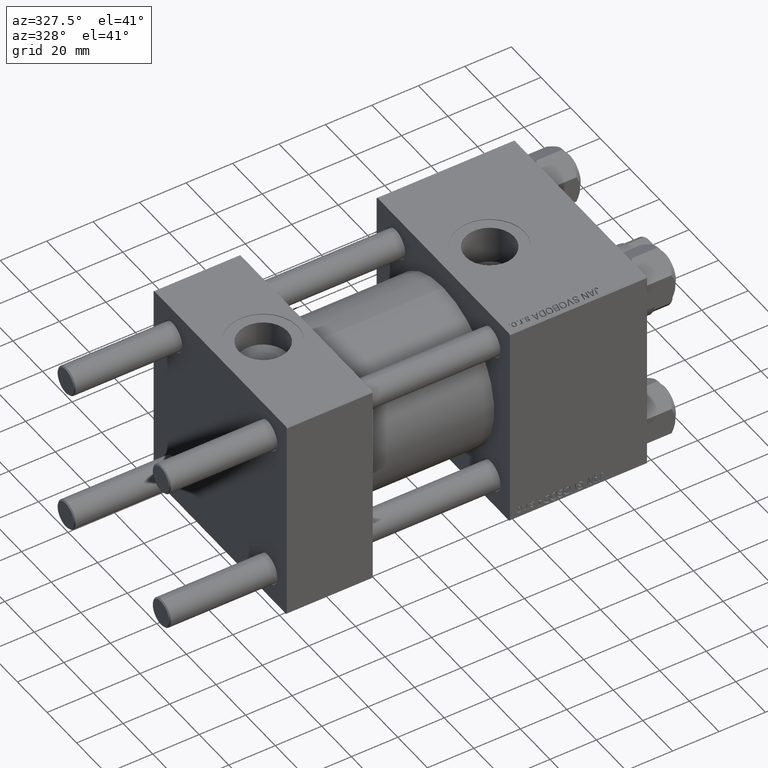
[diagram: clean part render]
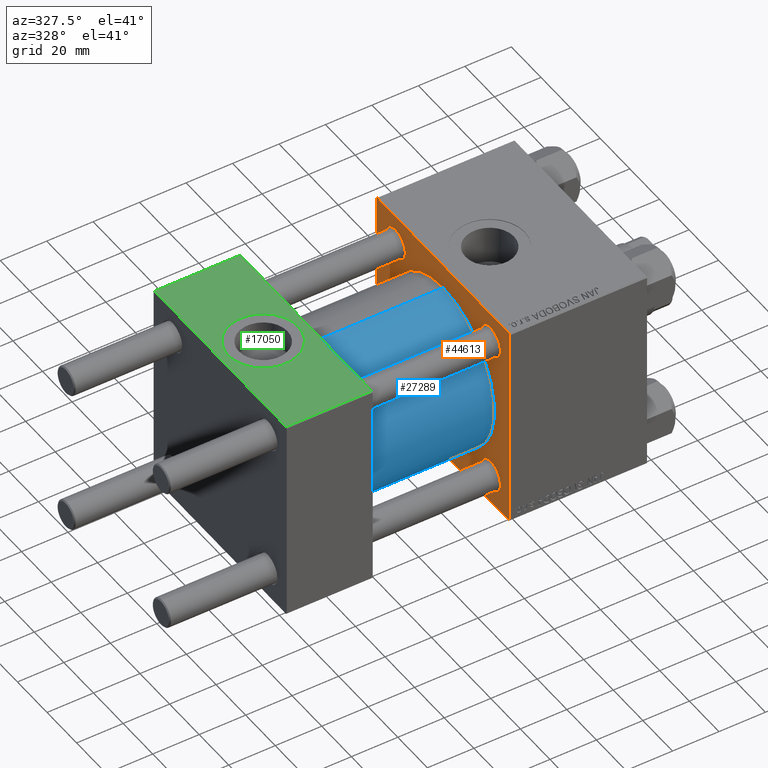
[diagram: same view with three faces highlighted in distinct colors, each labeled with its STEP entity id]
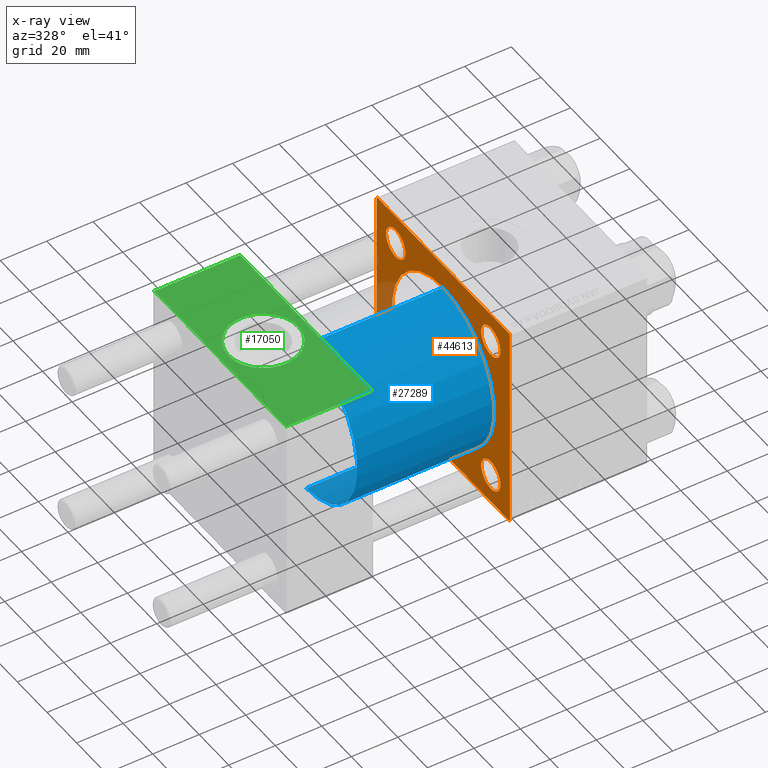
[diagram: x-ray of the same camera — body ghosted, the three highlighted faces saturated]
A machine part, auxiliary view with three faces highlighted in distinct colors.
The next image is the same camera in x-ray (body ghosted, the three faces saturated) — at least one of them is partly hidden behind the body in this view.
Their STEP definitions:

[orange] entity #44613 — the highlighted planar face has unit normal (-1, 0, 0).
#154 = CARTESIAN_POINT ( 'NONE',  ( 96.00000000000000000, 45.00000000000001421, -45.00000000000000000 ) ) ;
#954 = DIRECTION ( 'NONE',  ( 0.000000000000000000, 0.000000000000000000, 1.000000000000000000 ) ) ;
#1157 = ORIENTED_EDGE ( 'NONE', *, *, #49781, .T. ) ;
#1288 = CIRCLE ( 'NONE', #39050, 6.500000000000033751 ) ;
#1679 = ORIENTED_EDGE ( 'NONE', *, *, #38675, .F. ) ;
#2377 = CARTESIAN_POINT ( 'NONE',  ( 96.00000000000000000, -32.14999999999997726, 25.64999999999997726 ) ) ;
#2561 = EDGE_CURVE ( 'NONE', #17010, #9941, #34872, .T. ) ;
#2977 = EDGE_LOOP ( 'NONE', ( #9493, #13410 ) ) ;
#3344 = CARTESIAN_POINT ( 'NONE',  ( 96.00000000000000000, -32.14999999999997726, -25.64999999999997726 ) ) ;
#4055 = DIRECTION ( 'NONE',  ( 0.000000000000000000, 0.000000000000000000, 1.000000000000000000 ) ) ;
#4341 = VECTOR ( 'NONE', #20413, 1000.000000000000114 ) ;
#4376 = LINE ( 'NONE', #27778, #10995 ) ;
#4742 = CARTESIAN_POINT ( 'NONE',  ( 96.00000000000000000, -44.49999999999994316, 44.99999999999998579 ) ) ;
#4885 = CARTESIAN_POINT ( 'NONE',  ( 96.00000000000000000, 45.00000000000001421, -44.49999999999997158 ) ) ;
#4897 = EDGE_CURVE ( 'NONE', #37894, #37376, #26257, .T. ) ;
#5076 = CARTESIAN_POINT ( 'NONE',  ( 96.00000000000000000, 44.74999999999998579, 44.74999999999998579 ) ) ;
#5161 = ORIENTED_EDGE ( 'NONE', *, *, #26108, .T. ) ;
#5925 = CIRCLE ( 'NONE', #25207, 6.500000000000033751 ) ;
#7678 = VECTOR ( 'NONE', #22790, 1000.000000000000000 ) ;
#7735 = FACE_BOUND ( 'NONE', #35952, .T. ) ;
#7973 = EDGE_CURVE ( 'NONE', #12268, #12202, #11839, .T. ) ;
#7998 = CARTESIAN_POINT ( 'NONE',  ( 96.00000000000000000, -45.00000000000000000, 44.49999999999995737 ) ) ;
#8230 = CARTESIAN_POINT ( 'NONE',  ( 96.00000000000000000, -44.74999999999997158, 44.74999999999997158 ) ) ;
#8494 = DIRECTION ( 'NONE',  ( 1.000000000000000000, 0.000000000000000000, 0.000000000000000000 ) ) ;
#9048 = CARTESIAN_POINT ( 'NONE',  ( 96.00000000000000000, 4.225031457058367344E-15, -34.49999999999999289 ) ) ;
#9147 = ORIENTED_EDGE ( 'NONE', *, *, #40756, .T. ) ;
#9171 = EDGE_CURVE ( 'NONE', #12202, #12268, #38473, .T. ) ;
#9333 = CIRCLE ( 'NONE', #35846, 6.500000000000033751 ) ;
#9493 = ORIENTED_EDGE ( 'NONE', *, *, #4897, .T. ) ;
#9842 = EDGE_CURVE ( 'NONE', #20731, #38486, #14324, .T. ) ;
#9941 = VERTEX_POINT ( 'NONE', #15647 ) ;
#10456 = EDGE_LOOP ( 'NONE', ( #14981, #41584 ) ) ;
#10995 = VECTOR ( 'NONE', #16198, 1000.000000000000000 ) ;
#11386 = DIRECTION ( 'NONE',  ( 0.000000000000000000, 0.000000000000000000, 1.000000000000000000 ) ) ;
#11660 = EDGE_CURVE ( 'NONE', #37376, #37894, #28867, .T. ) ;
#11839 = CIRCLE ( 'NONE', #39996, 34.49999999999999289 ) ;
#11890 = EDGE_CURVE ( 'NONE', #38486, #20731, #24846, .T. ) ;
#12013 = EDGE_LOOP ( 'NONE', ( #16187, #18246 ) ) ;
#12202 = VERTEX_POINT ( 'NONE', #9048 ) ;
#12268 = VERTEX_POINT ( 'NONE', #36469 ) ;
#12314 = VERTEX_POINT ( 'NONE', #41995 ) ;
#12346 = DIRECTION ( 'NONE',  ( 0.000000000000000000, 0.000000000000000000, 1.000000000000000000 ) ) ;
#12412 = ORIENTED_EDGE ( 'NONE', *, *, #2561, .T. ) ;
#12419 = VERTEX_POINT ( 'NONE', #7998 ) ;
#12650 = CARTESIAN_POINT ( 'NONE',  ( 96.00000000000000000, 32.14999999999999147, -25.64999999999997016 ) ) ;
#13050 = CARTESIAN_POINT ( 'NONE',  ( 96.00000000000000000, 32.14999999999999147, 38.65000000000004121 ) ) ;
#13410 = ORIENTED_EDGE ( 'NONE', *, *, #11660, .T. ) ;
#13616 = AXIS2_PLACEMENT_3D ( 'NONE', #21044, #39450, #35669 ) ;
#13810 = VERTEX_POINT ( 'NONE', #37672 ) ;
#14299 = DIRECTION ( 'NONE',  ( -1.000000000000000000, 0.000000000000000000, -0.000000000000000000 ) ) ;
#14324 = CIRCLE ( 'NONE', #42477, 6.500000000000033751 ) ;
#14981 = ORIENTED_EDGE ( 'NONE', *, *, #35415, .T. ) ;
#15473 = DIRECTION ( 'NONE',  ( 1.000000000000000000, 0.000000000000000000, 0.000000000000000000 ) ) ;
#15647 = CARTESIAN_POINT ( 'NONE',  ( 96.00000000000000000, -44.49999999999990052, -45.00000000000000000 ) ) ;
#15720 = VERTEX_POINT ( 'NONE', #23105 ) ;
#16187 = ORIENTED_EDGE ( 'NONE', *, *, #26514, .T. ) ;
#16198 = DIRECTION ( 'NONE',  ( 0.000000000000000000, -1.000000000000000000, -1.541976423090495140E-16 ) ) ;
#16594 = AXIS2_PLACEMENT_3D ( 'NONE', #39583, #31784, #46895 ) ;
#16827 = LINE ( 'NONE', #44501, #47716 ) ;
#17010 = VERTEX_POINT ( 'NONE', #40158 ) ;
#17212 = CARTESIAN_POINT ( 'NONE',  ( 96.00000000000000000, 32.14999999999999147, -38.65000000000004121 ) ) ;
#17266 = ORIENTED_EDGE ( 'NONE', *, *, #36664, .T. ) ;
#18063 = FACE_BOUND ( 'NONE', #23896, .T. ) ;
#18246 = ORIENTED_EDGE ( 'NONE', *, *, #32876, .T. ) ;
#18511 = DIRECTION ( 'NONE',  ( 1.000000000000000000, 0.000000000000000000, 0.000000000000000000 ) ) ;
#18809 = PLANE ( 'NONE',  #37610 ) ;
#18895 = DIRECTION ( 'NONE',  ( 0.000000000000000000, 0.000000000000000000, -1.000000000000000000 ) ) ;
#19045 = ORIENTED_EDGE ( 'NONE', *, *, #37681, .F. ) ;
#19370 = VERTEX_POINT ( 'NONE', #17212 ) ;
#19726 = CARTESIAN_POINT ( 'NONE',  ( 96.00000000000000000, 32.14999999999999147, 25.64999999999997016 ) ) ;
#19948 = VECTOR ( 'NONE', #35911, 1000.000000000000114 ) ;
#20303 = LINE ( 'NONE', #8230, #19948 ) ;
#20321 = VERTEX_POINT ( 'NONE', #12650 ) ;
#20413 = DIRECTION ( 'NONE',  ( 0.000000000000000000, 0.7071067811865474617, -0.7071067811865474617 ) ) ;
#20731 = VERTEX_POINT ( 'NONE', #36478 ) ;
#21044 = CARTESIAN_POINT ( 'NONE',  ( 96.00000000000000000, 32.14999999999999147, 32.15000000000000568 ) ) ;
#22282 = CARTESIAN_POINT ( 'NONE',  ( 96.00000000000000000, 0.000000000000000000, 0.000000000000000000 ) ) ;
#22599 = CARTESIAN_POINT ( 'NONE',  ( 96.00000000000000000, 32.14999999999999147, -32.15000000000000568 ) ) ;
#22790 = DIRECTION ( 'NONE',  ( 0.000000000000000000, -1.000000000000000000, 0.000000000000000000 ) ) ;
#23105 = CARTESIAN_POINT ( 'NONE',  ( 96.00000000000000000, -44.99999999999999289, -44.49999999999991473 ) ) ;
#23417 = DIRECTION ( 'NONE',  ( 1.000000000000000000, 0.000000000000000000, 0.000000000000000000 ) ) ;
#23695 = AXIS2_PLACEMENT_3D ( 'NONE', #27626, #8494, #954 ) ;
#23896 = EDGE_LOOP ( 'NONE', ( #45573, #24911 ) ) ;
#24184 = CARTESIAN_POINT ( 'NONE',  ( 96.00000000000000000, -45.00000000000000000, 44.99999999999998579 ) ) ;
#24846 = CIRCLE ( 'NONE', #48165, 6.500000000000033751 ) ;
#24911 = ORIENTED_EDGE ( 'NONE', *, *, #9842, .T. ) ;
#25207 = AXIS2_PLACEMENT_3D ( 'NONE', #22599, #30167, #29668 ) ;
#25502 = VECTOR ( 'NONE', #39551, 1000.000000000000000 ) ;
#26108 = EDGE_CURVE ( 'NONE', #12314, #13810, #39561, .T. ) ;
#26227 = VECTOR ( 'NONE', #44500, 1000.000000000000000 ) ;
#26248 = DIRECTION ( 'NONE',  ( 1.000000000000000000, 0.000000000000000000, 0.000000000000000000 ) ) ;
#26257 = CIRCLE ( 'NONE', #16594, 6.500000000000033751 ) ;
#26514 = EDGE_CURVE ( 'NONE', #20321, #19370, #5925, .T. ) ;
#26946 = CARTESIAN_POINT ( 'NONE',  ( 96.00000000000000000, -32.14999999999997726, 32.15000000000001279 ) ) ;
#27543 = DIRECTION ( 'NONE',  ( 0.000000000000000000, 0.000000000000000000, 1.000000000000000000 ) ) ;
#27626 = CARTESIAN_POINT ( 'NONE',  ( 96.00000000000000000, 32.14999999999999147, -32.15000000000000568 ) ) ;
#27778 = CARTESIAN_POINT ( 'NONE',  ( 96.00000000000000000, 45.00000000000001421, 45.00000000000000000 ) ) ;
#28644 = DIRECTION ( 'NONE',  ( 0.000000000000000000, 0.000000000000000000, -1.000000000000000000 ) ) ;
#28867 = CIRCLE ( 'NONE', #13616, 6.500000000000033751 ) ;
#29591 = AXIS2_PLACEMENT_3D ( 'NONE', #41078, #49618, #18895 ) ;
#29668 = DIRECTION ( 'NONE',  ( 0.000000000000000000, 0.000000000000000000, 1.000000000000000000 ) ) ;
#29899 = FACE_BOUND ( 'NONE', #12013, .T. ) ;
#30143 = CIRCLE ( 'NONE', #23695, 6.500000000000033751 ) ;
#30167 = DIRECTION ( 'NONE',  ( 1.000000000000000000, 0.000000000000000000, 0.000000000000000000 ) ) ;
#30594 = ORIENTED_EDGE ( 'NONE', *, *, #7973, .T. ) ;
#30834 = CARTESIAN_POINT ( 'NONE',  ( 96.00000000000000000, -32.14999999999997726, -32.15000000000001279 ) ) ;
#31784 = DIRECTION ( 'NONE',  ( 1.000000000000000000, 0.000000000000000000, 0.000000000000000000 ) ) ;
#32227 = CARTESIAN_POINT ( 'NONE',  ( 96.00000000000000000, -32.14999999999997726, 32.15000000000001279 ) ) ;
#32344 = CARTESIAN_POINT ( 'NONE',  ( 96.00000000000000000, -32.14999999999997726, 38.65000000000004832 ) ) ;
#32622 = ORIENTED_EDGE ( 'NONE', *, *, #45532, .T. ) ;
#32876 = EDGE_CURVE ( 'NONE', #19370, #20321, #30143, .T. ) ;
#32925 = LINE ( 'NONE', #44262, #26227 ) ;
#33119 = ORIENTED_EDGE ( 'NONE', *, *, #9171, .T. ) ;
#33375 = VERTEX_POINT ( 'NONE', #2377 ) ;
#33433 = FACE_OUTER_BOUND ( 'NONE', #39757, .T. ) ;
#33679 = FACE_BOUND ( 'NONE', #10456, .T. ) ;
#33874 = DIRECTION ( 'NONE',  ( 0.000000000000000000, 0.000000000000000000, -1.000000000000000000 ) ) ;
#34872 = LINE ( 'NONE', #154, #7678 ) ;
#34938 = VERTEX_POINT ( 'NONE', #32344 ) ;
#35309 = EDGE_CURVE ( 'NONE', #33375, #34938, #9333, .T. ) ;
#35415 = EDGE_CURVE ( 'NONE', #34938, #33375, #1288, .T. ) ;
#35490 = DIRECTION ( 'NONE',  ( -0.000000000000000000, -0.7071067811865474617, -0.7071067811865474617 ) ) ;
#35669 = DIRECTION ( 'NONE',  ( 0.000000000000000000, 0.000000000000000000, 1.000000000000000000 ) ) ;
#35772 = LINE ( 'NONE', #24184, #25502 ) ;
#35846 = AXIS2_PLACEMENT_3D ( 'NONE', #26946, #23417, #4055 ) ;
#35911 = DIRECTION ( 'NONE',  ( -0.000000000000000000, 0.7071067811865474617, 0.7071067811865474617 ) ) ;
#35952 = EDGE_LOOP ( 'NONE', ( #30594, #33119 ) ) ;
#36469 = CARTESIAN_POINT ( 'NONE',  ( 96.00000000000000000, 0.000000000000000000, 34.49999999999999289 ) ) ;
#36478 = CARTESIAN_POINT ( 'NONE',  ( 96.00000000000000000, -32.14999999999997726, -38.65000000000004832 ) ) ;
#36664 = EDGE_CURVE ( 'NONE', #9941, #15720, #32925, .T. ) ;
#37376 = VERTEX_POINT ( 'NONE', #19726 ) ;
#37610 = AXIS2_PLACEMENT_3D ( 'NONE', #48789, #14299, #45266 ) ;
#37672 = CARTESIAN_POINT ( 'NONE',  ( 96.00000000000000000, 45.00000000000001421, 44.49999999999997158 ) ) ;
#37681 = EDGE_CURVE ( 'NONE', #12314, #41262, #4376, .T. ) ;
#37894 = VERTEX_POINT ( 'NONE', #13050 ) ;
#38473 = CIRCLE ( 'NONE', #29591, 34.49999999999999289 ) ;
#38486 = VERTEX_POINT ( 'NONE', #3344 ) ;
#38675 = EDGE_CURVE ( 'NONE', #12419, #15720, #35772, .T. ) ;
#39050 = AXIS2_PLACEMENT_3D ( 'NONE', #32227, #43819, #12346 ) ;
#39450 = DIRECTION ( 'NONE',  ( 1.000000000000000000, 0.000000000000000000, 0.000000000000000000 ) ) ;
#39551 = DIRECTION ( 'NONE',  ( 0.000000000000000000, 7.709882115452478166E-17, -1.000000000000000000 ) ) ;
#39561 = LINE ( 'NONE', #5076, #4341 ) ;
#39583 = CARTESIAN_POINT ( 'NONE',  ( 96.00000000000000000, 32.14999999999999147, 32.15000000000000568 ) ) ;
#39757 = EDGE_LOOP ( 'NONE', ( #12412, #17266, #1679, #32622, #19045, #5161, #1157, #9147 ) ) ;
#39996 = AXIS2_PLACEMENT_3D ( 'NONE', #22282, #18511, #33874 ) ;
#40029 = VECTOR ( 'NONE', #35490, 1000.000000000000114 ) ;
#40158 = CARTESIAN_POINT ( 'NONE',  ( 96.00000000000000000, 44.50000000000001421, -45.00000000000000000 ) ) ;
#40513 = CARTESIAN_POINT ( 'NONE',  ( 96.00000000000000000, 44.75000000000000000, -44.75000000000000000 ) ) ;
#40756 = EDGE_CURVE ( 'NONE', #43724, #17010, #48064, .T. ) ;
#41078 = CARTESIAN_POINT ( 'NONE',  ( 96.00000000000000000, 0.000000000000000000, 0.000000000000000000 ) ) ;
#41262 = VERTEX_POINT ( 'NONE', #4742 ) ;
#41584 = ORIENTED_EDGE ( 'NONE', *, *, #35309, .T. ) ;
#41995 = CARTESIAN_POINT ( 'NONE',  ( 96.00000000000000000, 44.49999999999998579, 45.00000000000000000 ) ) ;
#42233 = FACE_BOUND ( 'NONE', #2977, .T. ) ;
#42477 = AXIS2_PLACEMENT_3D ( 'NONE', #45883, #26248, #11386 ) ;
#43724 = VERTEX_POINT ( 'NONE', #4885 ) ;
#43819 = DIRECTION ( 'NONE',  ( 1.000000000000000000, 0.000000000000000000, 0.000000000000000000 ) ) ;
#44262 = CARTESIAN_POINT ( 'NONE',  ( 96.00000000000000000, -44.74999999999965183, -44.75000000000027001 ) ) ;
#44500 = DIRECTION ( 'NONE',  ( 0.000000000000000000, -0.7071067811865524577, 0.7071067811865426878 ) ) ;
#44501 = CARTESIAN_POINT ( 'NONE',  ( 96.00000000000000000, 45.00000000000001421, 45.00000000000000000 ) ) ;
#44613 = ADVANCED_FACE ( 'NONE', ( #33679, #42233, #29899, #18063, #7735, #33433 ), #18809, .T. ) ;
#45266 = DIRECTION ( 'NONE',  ( -0.000000000000000000, 0.000000000000000000, 1.000000000000000000 ) ) ;
#45532 = EDGE_CURVE ( 'NONE', #12419, #41262, #20303, .T. ) ;
#45573 = ORIENTED_EDGE ( 'NONE', *, *, #11890, .T. ) ;
#45883 = CARTESIAN_POINT ( 'NONE',  ( 96.00000000000000000, -32.14999999999997726, -32.15000000000001279 ) ) ;
#46895 = DIRECTION ( 'NONE',  ( 0.000000000000000000, 0.000000000000000000, 1.000000000000000000 ) ) ;
#47716 = VECTOR ( 'NONE', #28644, 1000.000000000000000 ) ;
#48064 = LINE ( 'NONE', #40513, #40029 ) ;
#48165 = AXIS2_PLACEMENT_3D ( 'NONE', #30834, #15473, #27543 ) ;
#48789 = CARTESIAN_POINT ( 'NONE',  ( 96.00000000000000000, 0.000000000000000000, 0.000000000000000000 ) ) ;
#49618 = DIRECTION ( 'NONE',  ( 1.000000000000000000, 0.000000000000000000, 0.000000000000000000 ) ) ;
#49781 = EDGE_CURVE ( 'NONE', #13810, #43724, #16827, .T. ) ;

[blue] entity #27289 — the highlighted cylindrical surface (partial cylindrical patch) has radius 34.5 mm, axis along (-1, -0, -0).
#2496 = EDGE_LOOP ( 'NONE', ( #13869, #48116, #21939, #6502 ) ) ;
#4240 = AXIS2_PLACEMENT_3D ( 'NONE', #34959, #27401, #31184 ) ;
#6502 = ORIENTED_EDGE ( 'NONE', *, *, #46753, .T. ) ;
#7973 = EDGE_CURVE ( 'NONE', #12268, #12202, #11839, .T. ) ;
#8255 = CIRCLE ( 'NONE', #4240, 34.49999999999999289 ) ;
#9048 = CARTESIAN_POINT ( 'NONE',  ( 96.00000000000000000, 4.225031457058367344E-15, -34.49999999999999289 ) ) ;
#11839 = CIRCLE ( 'NONE', #39996, 34.49999999999999289 ) ;
#12202 = VERTEX_POINT ( 'NONE', #9048 ) ;
#12268 = VERTEX_POINT ( 'NONE', #36469 ) ;
#12896 = CYLINDRICAL_SURFACE ( 'NONE', #17242, 34.49999999999999289 ) ;
#13605 = EDGE_CURVE ( 'NONE', #12202, #34644, #38475, .T. ) ;
#13869 = ORIENTED_EDGE ( 'NONE', *, *, #13605, .F. ) ;
#16058 = VERTEX_POINT ( 'NONE', #27074 ) ;
#16761 = LINE ( 'NONE', #47475, #28956 ) ;
#17242 = AXIS2_PLACEMENT_3D ( 'NONE', #43122, #43864, #24454 ) ;
#17613 = CARTESIAN_POINT ( 'NONE',  ( 37.00000000000000000, 4.225031457058367344E-15, -34.49999999999999289 ) ) ;
#18025 = EDGE_CURVE ( 'NONE', #12268, #16058, #16761, .T. ) ;
#18511 = DIRECTION ( 'NONE',  ( 1.000000000000000000, 0.000000000000000000, 0.000000000000000000 ) ) ;
#21939 = ORIENTED_EDGE ( 'NONE', *, *, #18025, .T. ) ;
#22282 = CARTESIAN_POINT ( 'NONE',  ( 96.00000000000000000, 0.000000000000000000, 0.000000000000000000 ) ) ;
#23355 = CARTESIAN_POINT ( 'NONE',  ( 96.00000000000000000, 4.225031457058367344E-15, -34.49999999999999289 ) ) ;
#24454 = DIRECTION ( 'NONE',  ( 0.000000000000000000, 0.000000000000000000, 1.000000000000000000 ) ) ;
#27074 = CARTESIAN_POINT ( 'NONE',  ( 37.00000000000000000, 0.000000000000000000, 34.49999999999999289 ) ) ;
#27289 = ADVANCED_FACE ( 'NONE', ( #36540 ), #12896, .T. ) ;
#27401 = DIRECTION ( 'NONE',  ( 1.000000000000000000, -0.000000000000000000, 0.000000000000000000 ) ) ;
#28956 = VECTOR ( 'NONE', #36817, 1000.000000000000000 ) ;
#30567 = VECTOR ( 'NONE', #34691, 1000.000000000000000 ) ;
#31184 = DIRECTION ( 'NONE',  ( 0.000000000000000000, 0.000000000000000000, 1.000000000000000000 ) ) ;
#33874 = DIRECTION ( 'NONE',  ( 0.000000000000000000, 0.000000000000000000, -1.000000000000000000 ) ) ;
#34644 = VERTEX_POINT ( 'NONE', #17613 ) ;
#34691 = DIRECTION ( 'NONE',  ( -1.000000000000000000, -0.000000000000000000, -0.000000000000000000 ) ) ;
#34959 = CARTESIAN_POINT ( 'NONE',  ( 37.00000000000000000, 0.000000000000000000, 0.000000000000000000 ) ) ;
#36469 = CARTESIAN_POINT ( 'NONE',  ( 96.00000000000000000, 0.000000000000000000, 34.49999999999999289 ) ) ;
#36540 = FACE_OUTER_BOUND ( 'NONE', #2496, .T. ) ;
#36817 = DIRECTION ( 'NONE',  ( -1.000000000000000000, -0.000000000000000000, -0.000000000000000000 ) ) ;
#38475 = LINE ( 'NONE', #23355, #30567 ) ;
#39996 = AXIS2_PLACEMENT_3D ( 'NONE', #22282, #18511, #33874 ) ;
#43122 = CARTESIAN_POINT ( 'NONE',  ( 96.00000000000000000, 0.000000000000000000, 0.000000000000000000 ) ) ;
#43864 = DIRECTION ( 'NONE',  ( -1.000000000000000000, -0.000000000000000000, -0.000000000000000000 ) ) ;
#46753 = EDGE_CURVE ( 'NONE', #16058, #34644, #8255, .T. ) ;
#47475 = CARTESIAN_POINT ( 'NONE',  ( 96.00000000000000000, 0.000000000000000000, 34.49999999999999289 ) ) ;
#48116 = ORIENTED_EDGE ( 'NONE', *, *, #7973, .F. ) ;

[green] entity #17050 — the highlighted planar face has unit normal (0, 0, -1).
#229 = ORIENTED_EDGE ( 'NONE', *, *, #2312, .T. ) ;
#1419 = LINE ( 'NONE', #32133, #23554 ) ;
#1998 = CARTESIAN_POINT ( 'NONE',  ( 18.50000000000000000, -8.673617379884038628E-15, 45.00000000000000711 ) ) ;
#2312 = EDGE_CURVE ( 'NONE', #28113, #12485, #23349, .T. ) ;
#3146 = VERTEX_POINT ( 'NONE', #29492 ) ;
#5111 = CARTESIAN_POINT ( 'NONE',  ( 0.000000000000000000, 44.49999999999998579, 45.00000000000001421 ) ) ;
#7154 = CARTESIAN_POINT ( 'NONE',  ( 0.000000000000000000, -44.49999999999995737, 45.00000000000000000 ) ) ;
#8174 = CARTESIAN_POINT ( 'NONE',  ( 18.50000000000000000, -8.673617379884038628E-15, 45.00000000000000711 ) ) ;
#8702 = ORIENTED_EDGE ( 'NONE', *, *, #25521, .F. ) ;
#9947 = VECTOR ( 'NONE', #19323, 1000.000000000000000 ) ;
#11530 = DIRECTION ( 'NONE',  ( 1.000000000000000000, 0.000000000000000000, 0.000000000000000000 ) ) ;
#12485 = VERTEX_POINT ( 'NONE', #34678 ) ;
#12996 = DIRECTION ( 'NONE',  ( 0.000000000000000000, -1.000000000000000000, -1.541976423090495387E-16 ) ) ;
#13628 = ORIENTED_EDGE ( 'NONE', *, *, #27718, .F. ) ;
#15106 = EDGE_CURVE ( 'NONE', #17984, #3146, #23988, .T. ) ;
#16410 = AXIS2_PLACEMENT_3D ( 'NONE', #1998, #17355, #41026 ) ;
#17050 = ADVANCED_FACE ( 'NONE', ( #40656, #17734 ), #29057, .F. ) ;
#17355 = DIRECTION ( 'NONE',  ( 0.000000000000000000, 0.000000000000000000, 1.000000000000000000 ) ) ;
#17734 = FACE_OUTER_BOUND ( 'NONE', #38494, .T. ) ;
#17786 = ORIENTED_EDGE ( 'NONE', *, *, #15106, .T. ) ;
#17984 = VERTEX_POINT ( 'NONE', #35396 ) ;
#19323 = DIRECTION ( 'NONE',  ( 0.000000000000000000, -1.000000000000000000, -1.541976423090495387E-16 ) ) ;
#19622 = EDGE_LOOP ( 'NONE', ( #44848, #13628 ) ) ;
#20316 = LINE ( 'NONE', #39461, #9947 ) ;
#22254 = DIRECTION ( 'NONE',  ( 0.000000000000000000, 1.000000000000000000, 1.541976423090495633E-16 ) ) ;
#23306 = ORIENTED_EDGE ( 'NONE', *, *, #26592, .T. ) ;
#23349 = LINE ( 'NONE', #38961, #47852 ) ;
#23518 = DIRECTION ( 'NONE',  ( 0.000000000000000000, 0.000000000000000000, 1.000000000000000000 ) ) ;
#23554 = VECTOR ( 'NONE', #12996, 1000.000000000000000 ) ;
#23988 = LINE ( 'NONE', #5111, #44269 ) ;
#24853 = VERTEX_POINT ( 'NONE', #45448 ) ;
#25281 = DIRECTION ( 'NONE',  ( 0.000000000000000000, 1.541976423090495633E-16, -1.000000000000000000 ) ) ;
#25521 = EDGE_CURVE ( 'NONE', #17984, #12485, #1419, .T. ) ;
#26592 = EDGE_CURVE ( 'NONE', #3146, #28113, #20316, .T. ) ;
#27718 = EDGE_CURVE ( 'NONE', #41243, #24853, #38122, .T. ) ;
#28113 = VERTEX_POINT ( 'NONE', #7154 ) ;
#29057 = PLANE ( 'NONE',  #45042 ) ;
#29309 = CARTESIAN_POINT ( 'NONE',  ( 37.00000000000000000, 44.99999999999998579, 45.00000000000001421 ) ) ;
#29492 = CARTESIAN_POINT ( 'NONE',  ( 0.000000000000000000, 44.49999999999998579, 45.00000000000001421 ) ) ;
#32133 = CARTESIAN_POINT ( 'NONE',  ( 37.00000000000000000, 44.99999999999998579, 45.00000000000001421 ) ) ;
#32506 = EDGE_CURVE ( 'NONE', #24853, #41243, #44596, .T. ) ;
#34678 = CARTESIAN_POINT ( 'NONE',  ( 37.00000000000000000, -44.49999999999995737, 45.00000000000000000 ) ) ;
#35396 = CARTESIAN_POINT ( 'NONE',  ( 37.00000000000000000, 44.49999999999998579, 45.00000000000001421 ) ) ;
#35445 = CARTESIAN_POINT ( 'NONE',  ( 3.499999999999997780, -6.836647181163008250E-15, 45.00000000000000711 ) ) ;
#35741 = AXIS2_PLACEMENT_3D ( 'NONE', #8174, #23518, #38889 ) ;
#38122 = CIRCLE ( 'NONE', #16410, 15.00000000000000355 ) ;
#38494 = EDGE_LOOP ( 'NONE', ( #23306, #229, #8702, #17786 ) ) ;
#38889 = DIRECTION ( 'NONE',  ( 1.000000000000000000, 0.000000000000000000, 0.000000000000000000 ) ) ;
#38961 = CARTESIAN_POINT ( 'NONE',  ( 37.00000000000000000, -44.49999999999998579, 45.00000000000000000 ) ) ;
#39461 = CARTESIAN_POINT ( 'NONE',  ( 0.000000000000000000, 44.99999999999998579, 45.00000000000001421 ) ) ;
#40656 = FACE_BOUND ( 'NONE', #19622, .T. ) ;
#41026 = DIRECTION ( 'NONE',  ( 1.000000000000000000, 0.000000000000000000, 0.000000000000000000 ) ) ;
#41243 = VERTEX_POINT ( 'NONE', #35445 ) ;
#43633 = DIRECTION ( 'NONE',  ( -1.000000000000000000, 0.000000000000000000, 0.000000000000000000 ) ) ;
#44269 = VECTOR ( 'NONE', #43633, 1000.000000000000000 ) ;
#44596 = CIRCLE ( 'NONE', #35741, 15.00000000000000355 ) ;
#44848 = ORIENTED_EDGE ( 'NONE', *, *, #32506, .F. ) ;
#45042 = AXIS2_PLACEMENT_3D ( 'NONE', #29309, #25281, #22254 ) ;
#45448 = CARTESIAN_POINT ( 'NONE',  ( 33.50000000000000000, -8.673617379884038628E-15, 45.00000000000000711 ) ) ;
#47852 = VECTOR ( 'NONE', #11530, 1000.000000000000000 ) ;